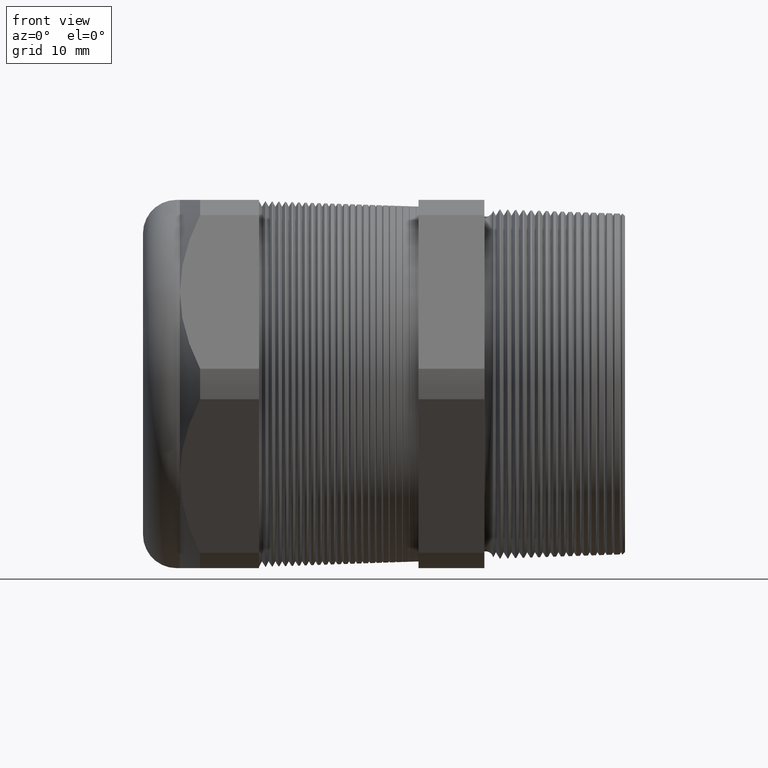
[diagram: clean part render]
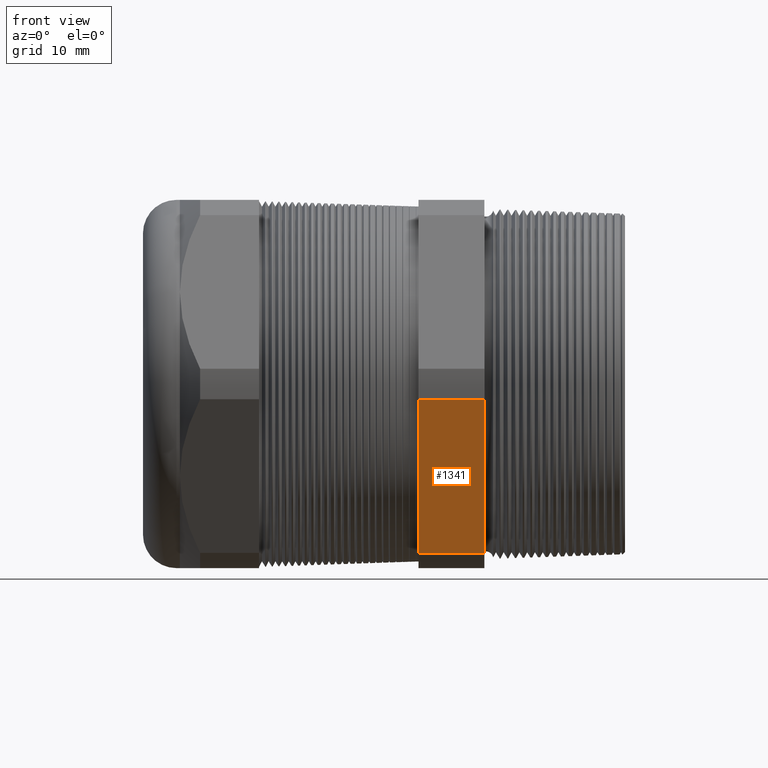
[diagram: same view with one face highlighted and labeled with its STEP entity id]
A machine part, front view. The second image highlights one B-rep face of the part: STEP entity #1341.
In plain terms, the highlighted planar face has unit normal (0, -0.866, -0.5).
Its self-contained STEP definition (entity closure, byte-faithful):
#1162 = VERTEX_POINT ( 'NONE', #3886 ) ;
#1166 = EDGE_CURVE ( 'NONE', #1162, #1167, #3885, .T. ) ;
#1167 = VERTEX_POINT ( 'NONE', #3875 ) ;
#1282 = EDGE_CURVE ( 'NONE', #1162, #7521, #4086, .T. ) ;
#1284 = EDGE_LOOP ( 'NONE', ( #1342, #1343, #1344, #1346 ) ) ;
#1341 = ADVANCED_FACE ( 'NONE', ( #4132 ), #4138, .T. ) ;
#1342 = ORIENTED_EDGE ( 'NONE', *, *, #1282, .T. ) ;
#1343 = ORIENTED_EDGE ( 'NONE', *, *, #7523, .F. ) ;
#1344 = ORIENTED_EDGE ( 'NONE', *, *, #1345, .F. ) ;
#1345 = EDGE_CURVE ( 'NONE', #1167, #7534, #4193, .T. ) ;
#1346 = ORIENTED_EDGE ( 'NONE', *, *, #1166, .F. ) ;
#3875 = CARTESIAN_POINT ( 'NONE',  ( -0.3100000000000000000, -0.5157418318598037100, -0.7567089436301741600 ) ) ;
#3876 = DIRECTION ( 'NONE',  ( 0.0000000000000000000, 0.5000000000000001100, -0.8660254037844384900 ) ) ;
#3877 = VECTOR ( 'NONE', #3876, 39.37007874015748900 ) ;
#3878 = CARTESIAN_POINT ( 'NONE',  ( -0.3100000000000000000, -0.3019709581221617400, -1.126970958122162300 ) ) ;
#3885 = LINE ( 'NONE', #3878, #3877 ) ;
#3886 = CARTESIAN_POINT ( 'NONE',  ( -0.3100000000000000000, -0.9132000843845193800, -0.06829105636982593700 ) ) ;
#4080 = DIRECTION ( 'NONE',  ( -1.000000000000000000, 0.0000000000000000000, 0.0000000000000000000 ) ) ;
#4081 = VECTOR ( 'NONE', #4080, 39.37007874015748100 ) ;
#4082 = CARTESIAN_POINT ( 'NONE',  ( 0.3199999999999998400, -0.9132000843845193800, -0.06829105636982593700 ) ) ;
#4086 = LINE ( 'NONE', #4082, #4081 ) ;
#4128 = DIRECTION ( 'NONE',  ( 0.0000000000000000000, 0.5000000000000001100, -0.8660254037844384900 ) ) ;
#4129 = DIRECTION ( 'NONE',  ( 0.0000000000000000000, -0.8660254037844386000, -0.5000000000000002200 ) ) ;
#4130 = CARTESIAN_POINT ( 'NONE',  ( 0.3199999999999998400, -0.5157418318598038200, -0.7567089436301740500 ) ) ;
#4131 = AXIS2_PLACEMENT_3D ( 'NONE', #4130, #4129, #4128 ) ;
#4132 = FACE_OUTER_BOUND ( 'NONE', #1284, .T. ) ;
#4138 = PLANE ( 'NONE',  #4131 ) ;
#4190 = DIRECTION ( 'NONE',  ( -1.000000000000000000, 0.0000000000000000000, 0.0000000000000000000 ) ) ;
#4191 = VECTOR ( 'NONE', #4190, 39.37007874015748100 ) ;
#4192 = CARTESIAN_POINT ( 'NONE',  ( 0.3199999999999998400, -0.5157418318598037100, -0.7567089436301741600 ) ) ;
#4193 = LINE ( 'NONE', #4192, #4191 ) ;
#5358 = VECTOR ( 'NONE', #5424, 39.37007874015748900 ) ;
#5359 = CARTESIAN_POINT ( 'NONE',  ( -0.6052755905511809600, -0.3019709581221617400, -1.126970958122162300 ) ) ;
#5360 = LINE ( 'NONE', #5359, #5358 ) ;
#5367 = CARTESIAN_POINT ( 'NONE',  ( -0.6052755905511810800, -0.9132000843845193800, -0.06829105636982593700 ) ) ;
#5405 = CARTESIAN_POINT ( 'NONE',  ( -0.6052755905511810800, -0.5157418318598037100, -0.7567089436301741600 ) ) ;
#5424 = DIRECTION ( 'NONE',  ( 0.0000000000000000000, -0.5000000000000001100, 0.8660254037844384900 ) ) ;
#7521 = VERTEX_POINT ( 'NONE', #5367 ) ;
#7523 = EDGE_CURVE ( 'NONE', #7534, #7521, #5360, .T. ) ;
#7534 = VERTEX_POINT ( 'NONE', #5405 ) ;